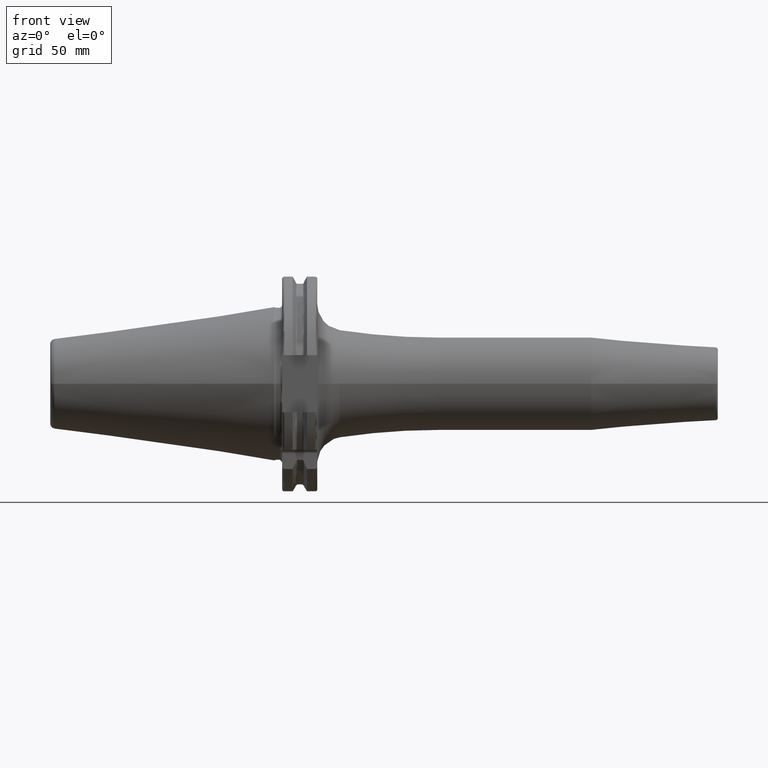
[diagram: clean part render]
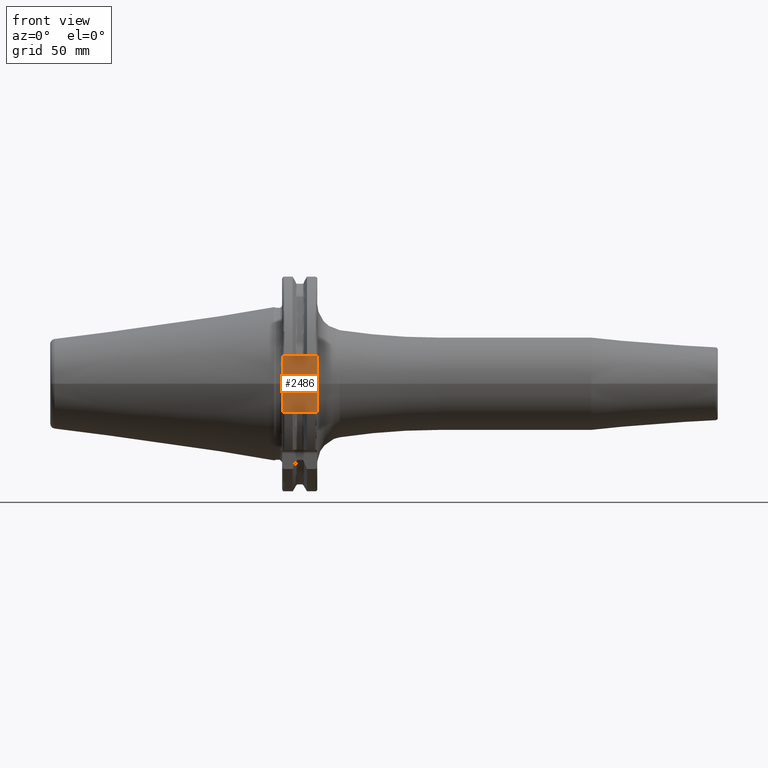
[diagram: same view with one face highlighted and labeled with its STEP entity id]
A machine part, front view. The second image highlights one B-rep face of the part: STEP entity #2486.
In plain terms, the highlighted planar face has unit normal (0, 1, 0).
Its self-contained STEP definition (entity closure, byte-faithful):
#151=DIRECTION('',(0.E0,0.E0,1.E0));
#152=VECTOR('',#151,2.58E1);
#153=CARTESIAN_POINT('',(1.905E1,-3.75E1,-1.29E1));
#154=LINE('',#153,#152);
#367=DIRECTION('',(-1.E0,0.E0,0.E0));
#368=VECTOR('',#367,1.585E1);
#369=CARTESIAN_POINT('',(1.905E1,-3.75E1,1.29E1));
#370=LINE('',#369,#368);
#592=DIRECTION('',(0.E0,0.E0,1.E0));
#593=VECTOR('',#592,2.58E1);
#594=CARTESIAN_POINT('',(3.2E0,-3.75E1,-1.29E1));
#595=LINE('',#594,#593);
#819=DIRECTION('',(-1.E0,0.E0,0.E0));
#820=VECTOR('',#819,1.585E1);
#821=CARTESIAN_POINT('',(1.905E1,-3.75E1,-1.29E1));
#822=LINE('',#821,#820);
#1375=CARTESIAN_POINT('',(1.905E1,-3.75E1,-1.29E1));
#1377=VERTEX_POINT('',#1375);
#1378=CARTESIAN_POINT('',(1.905E1,-3.75E1,1.29E1));
#1379=VERTEX_POINT('',#1378);
#1403=CARTESIAN_POINT('',(3.2E0,-3.75E1,-1.29E1));
#1405=VERTEX_POINT('',#1403);
#1406=CARTESIAN_POINT('',(3.2E0,-3.75E1,1.29E1));
#1407=VERTEX_POINT('',#1406);
#2475=CARTESIAN_POINT('',(1.905E1,-3.75E1,-1.29E1));
#2476=DIRECTION('',(0.E0,1.E0,0.E0));
#2477=DIRECTION('',(0.E0,0.E0,1.E0));
#2478=AXIS2_PLACEMENT_3D('',#2475,#2476,#2477);
#2479=PLANE('',#2478);
#2480=ORIENTED_EDGE('',*,*,#1702,.F.);
#2481=ORIENTED_EDGE('',*,*,#2434,.T.);
#2482=ORIENTED_EDGE('',*,*,#2230,.T.);
#2483=ORIENTED_EDGE('',*,*,#2061,.F.);
#2484=EDGE_LOOP('',(#2480,#2481,#2482,#2483));
#2485=FACE_OUTER_BOUND('',#2484,.F.);
#2486=ADVANCED_FACE('',(#2485),#2479,.F.);
#1702=EDGE_CURVE('',#1377,#1379,#154,.T.);
#2061=EDGE_CURVE('',#1379,#1407,#370,.T.);
#2230=EDGE_CURVE('',#1405,#1407,#595,.T.);
#2434=EDGE_CURVE('',#1377,#1405,#822,.T.);